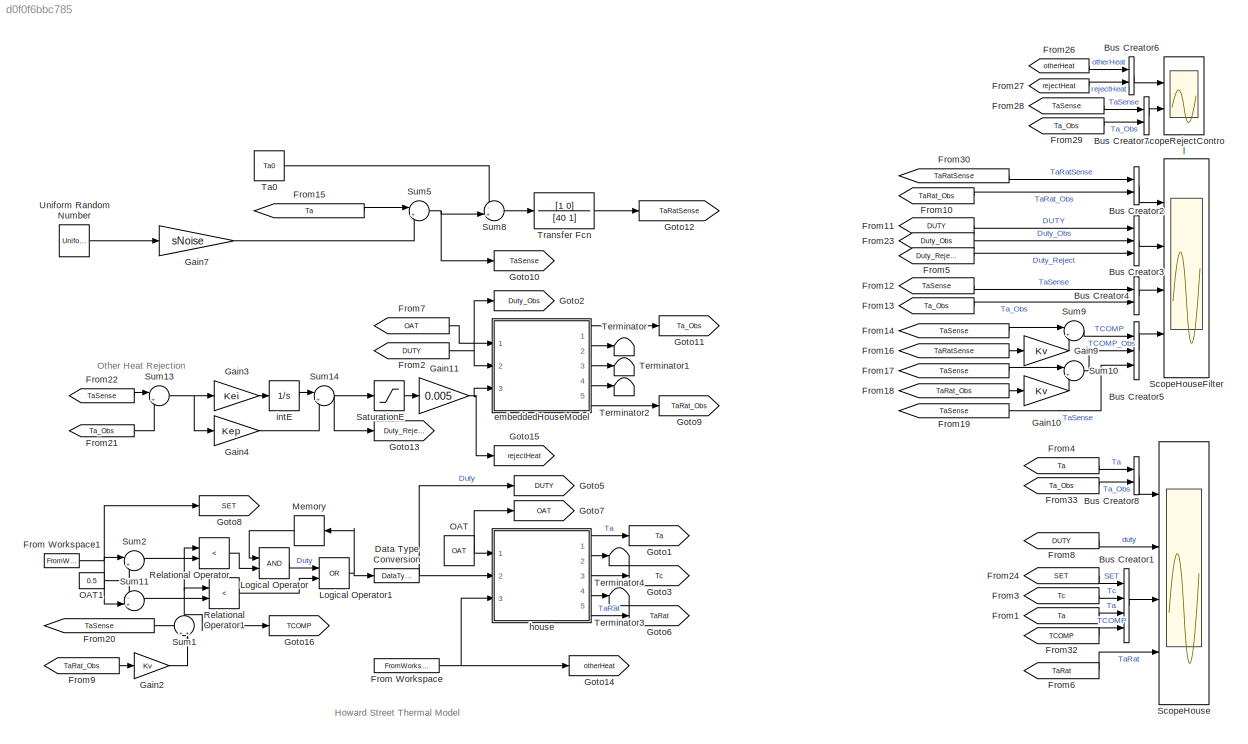
MODEL slx_d0f0f6bbc785
KIND model
CONFIG InitFcn = Ta0=Temp;\nTw0 = (Ta0*Ha + OAT*Ho)/(Ho+Ha);\nTb0=max(min(interp1([Rn Rx],[Tn Tx],OAT), Tn),Tx);\nTc0 = ((Ha+Hc)*Ta0 - Ha*Tw0) / Hc;\nD0 =max(min( Hc*(Tc0-Ta0)/(Hf*(Tb0-Tc0)), 1), 1e-32);\n\nTa1=SET(1,2);\nTw1 = (Ta1*Ha + OAT*Ho)/(Ho+Ha);\nTb1=max(min(interp1([Rn Rx],[Tn Tx],OAT), Tn),Tx);\nTc1 = ((Ha+Hc)*Ta1 - Ha*Tw1) / Hc;\nD1 =max(min( Hc*(Tc1-Ta1)/(Hf*(Tb1-Tc1)), 1), 1e-32);\n\n% Note:   not steady state a...<+235ch>
CONFIG PreLoadFcn = OAT=30;\nTemp=68;\n\nRn=29;\nRx=69;\nTn=180;\nTx=120;\n\nHc=114/86400;\nHa=1.61/86400;\n%Hf=1.08/86400;\nHf=1.745/86400;\nHo=283/86400;\n\ntau=40;\nFILTER_DELAY = 5;\n\nKv=400;  % gain in TCOMP of house control\nKei=2e-4;\nKep=1;\n\n% From match to thermo20160128.xlsx\nsNoise=0.001;\nSET = [0 60 18861 18862; 68 62 68 68]';\notherHeat=[0 1000 6000; .001 .001 .0005]';\ntFinal = 24132;\nTemp= 68.98;\n
BLOCK [BusCreator] Bus Creator1
  DisplayOption = bar
  Ports = [4, 1]
BLOCK [BusCreator] Bus Creator2
  DisplayOption = bar
  Inputs = 2
  Ports = [2, 1]
BLOCK [BusCreator] Bus Creator3
  DisplayOption = bar
  Inputs = 3
  Ports = [3, 1]
BLOCK [BusCreator] Bus Creator4
  DisplayOption = bar
  Inputs = 2
  Ports = [2, 1]
BLOCK [BusCreator] Bus Creator5
  DisplayOption = bar
  Inputs = 3
  Ports = [3, 1]
BLOCK [BusCreator] Bus Creator6
  DisplayOption = bar
  Inputs = 2
  Ports = [2, 1]
BLOCK [BusCreator] Bus Creator7
  DisplayOption = bar
  Inputs = 2
  Ports = [2, 1]
BLOCK [BusCreator] Bus Creator8
  DisplayOption = bar
  Inputs = 2
  Ports = [2, 1]
BLOCK [DataTypeConversion] Data Type Conversion
  OutDataTypeStr = double
  RndMeth = Floor
  SaturateOnIntegerOverflow = off
BLOCK [FromWorkspace] From Workspace
  OutputAfterFinalValue = Holding final value
  SampleTime = 1
  VariableName = otherHeat
  ZeroCross = on
BLOCK [FromWorkspace] From Workspace1
  OutputAfterFinalValue = Holding final value
  SampleTime = 1
  VariableName = SET
  ZeroCross = on
BLOCK [From] From1
  GotoTag = Ta
  TagVisibility = global
BLOCK [From] From10
  GotoTag = TaRat_Obs
  TagVisibility = global
BLOCK [From] From11
  GotoTag = DUTY
  TagVisibility = global
BLOCK [From] From12
  GotoTag = TaSense
  TagVisibility = global
BLOCK [From] From13
  GotoTag = Ta_Obs
  TagVisibility = global
BLOCK [From] From14
  CloseFcn = tagdialog Close
  GotoTag = TaSense
  TagVisibility = global
BLOCK [From] From15
  CloseFcn = tagdialog Close
  GotoTag = Ta
  TagVisibility = global
BLOCK [From] From16
  CloseFcn = tagdialog Close
  GotoTag = TaRatSense
  TagVisibility = global
BLOCK [From] From17
  CloseFcn = tagdialog Close
  GotoTag = TaSense
  TagVisibility = global
BLOCK [From] From18
  CloseFcn = tagdialog Close
  GotoTag = TaRat_Obs
  TagVisibility = global
BLOCK [From] From19
  CloseFcn = tagdialog Close
  GotoTag = TaSense
  TagVisibility = global
BLOCK [From] From2
  GotoTag = DUTY
  TagVisibility = global
BLOCK [From] From20
  CloseFcn = tagdialog Close
  GotoTag = TaSense
  TagVisibility = global
BLOCK [From] From21
  GotoTag = Ta_Obs
  TagVisibility = global
BLOCK [From] From22
  CloseFcn = tagdialog Close
  GotoTag = TaSense
  TagVisibility = global
BLOCK [From] From23
  GotoTag = Duty_Obs
  TagVisibility = global
BLOCK [From] From24
  GotoTag = SET
  TagVisibility = global
BLOCK [From] From26
  CloseFcn = tagdialog Close
  GotoTag = otherHeat
  TagVisibility = global
BLOCK [From] From27
  CloseFcn = tagdialog Close
  GotoTag = rejectHeat
  TagVisibility = global
BLOCK [From] From28
  GotoTag = TaSense
  TagVisibility = global
BLOCK [From] From29
  GotoTag = Ta_Obs
  TagVisibility = global
BLOCK [From] From3
  GotoTag = Tc
  TagVisibility = global
BLOCK [From] From30
  CloseFcn = tagdialog Close
  GotoTag = TaRatSense
  TagVisibility = global
BLOCK [From] From32
  GotoTag = TCOMP
  TagVisibility = global
BLOCK [From] From33
  GotoTag = Ta_Obs
  TagVisibility = global
BLOCK [From] From4
  GotoTag = Ta
  TagVisibility = global
BLOCK [From] From5
  GotoTag = Duty_Reject
  TagVisibility = global
BLOCK [From] From6
  GotoTag = TaRat
  TagVisibility = global
BLOCK [From] From7
  GotoTag = OAT
  TagVisibility = global
BLOCK [From] From8
  GotoTag = DUTY
  TagVisibility = global
BLOCK [From] From9
  GotoTag = TaRat_Obs
  TagVisibility = global
BLOCK [Gain] Gain10
  Gain = Kv
  OutDataTypeStr = Inherit: Inherit via internal rule
  ParamDataTypeStr = Inherit: Inherit via internal rule
  SaturateOnIntegerOverflow = off
BLOCK [Gain] Gain11
  Gain = 0.005
  OutDataTypeStr = Inherit: Inherit via internal rule
  ParamDataTypeStr = Inherit: Inherit via internal rule
  SaturateOnIntegerOverflow = off
BLOCK [Gain] Gain2
  Gain = Kv
  OutDataTypeStr = Inherit: Inherit via internal rule
  ParamDataTypeStr = Inherit: Inherit via internal rule
  SaturateOnIntegerOverflow = off
BLOCK [Gain] Gain3
  Gain = Kei
  OutDataTypeStr = Inherit: Inherit via internal rule
  ParamDataTypeStr = Inherit: Inherit via internal rule
  SaturateOnIntegerOverflow = off
BLOCK [Gain] Gain4
  Gain = Kep
  OutDataTypeStr = Inherit: Inherit via internal rule
  ParamDataTypeStr = Inherit: Inherit via internal rule
  SaturateOnIntegerOverflow = off
BLOCK [Gain] Gain7
  Gain = sNoise
  OutDataTypeStr = Inherit: Inherit via internal rule
  ParamDataTypeStr = Inherit: Inherit via internal rule
  SaturateOnIntegerOverflow = off
BLOCK [Gain] Gain9
  Gain = Kv
  OutDataTypeStr = Inherit: Inherit via internal rule
  ParamDataTypeStr = Inherit: Inherit via internal rule
  SaturateOnIntegerOverflow = off
BLOCK [Goto] Goto1
  GotoTag = Ta
  TagVisibility = global
BLOCK [Goto] Goto10
  GotoTag = TaSense
  TagVisibility = global
BLOCK [Goto] Goto11
  GotoTag = Ta_Obs
  TagVisibility = global
BLOCK [Goto] Goto12
  GotoTag = TaRatSense
  TagVisibility = global
BLOCK [Goto] Goto13
  GotoTag = Duty_Reject
  TagVisibility = global
BLOCK [Goto] Goto14
  GotoTag = otherHeat
  TagVisibility = global
BLOCK [Goto] Goto15
  GotoTag = rejectHeat
  TagVisibility = global
BLOCK [Goto] Goto16
  GotoTag = TCOMP
  TagVisibility = global
BLOCK [Goto] Goto2
  GotoTag = Duty_Obs
  TagVisibility = global
BLOCK [Goto] Goto3
  GotoTag = Tc
  TagVisibility = global
BLOCK [Goto] Goto5
  GotoTag = DUTY
  TagVisibility = global
BLOCK [Goto] Goto6
  GotoTag = TaRat
  TagVisibility = global
BLOCK [Goto] Goto7
  GotoTag = OAT
  TagVisibility = global
BLOCK [Goto] Goto8
  GotoTag = SET
  TagVisibility = global
BLOCK [Goto] Goto9
  GotoTag = TaRat_Obs
  TagVisibility = global
BLOCK [Logic] Logical Operator
  AllPortsSameDT = off
  OutDataTypeStr = boolean
  Ports = [2, 1]
BLOCK [Logic] Logical Operator1
  AllPortsSameDT = off
  Operator = OR
  OutDataTypeStr = boolean
  Ports = [2, 1]
BLOCK [Memory] Memory
  X0 = DUTY0
BLOCK [Constant] OAT
  Value = OAT
BLOCK [Constant] OAT1
  Value = 0.5
BLOCK [RelationalOperator] Relational Operator
  InputSameDT = off
  Operator = <
  OutDataTypeStr = boolean
  Ports = [2, 1]
BLOCK [RelationalOperator] Relational Operator1
  InputSameDT = off
  Operator = <
  OutDataTypeStr = boolean
  Ports = [2, 1]
BLOCK [Saturate] SaturationE
  InputPortMap = u0
  LowerLimit = -1
  Ports = [1, 1]
  UpperLimit = 1
BLOCK [Scope] ScopeHouse
  DataFormat = StructureWithTime
  Decimation = 2
  Floating = off
  LegendLocations = 0.84209     0.88674     0.12015    0.055728\n  0.864     0.67957    0.097622    0.031476\n0.84209     0.37539     0.12015     0.10423\n0.85148     0.21672     0.11014    0.031476
  LimitDataPoints = off
  NumInputPorts = 4
  Ports = [4]
  SampleTime = 0
  ShowLegends = on
  YMax = 75~70~5~5
  YMin = -75~-40~-5~-5
  ZoomMode = yonly
BLOCK [Scope] ScopeHouseFilter
  DataFormat = StructureWithTime
  Decimation = 2
  Floating = off
  LegendLocations = 0.78833     0.89866     0.16857    0.049861\n0.78976     0.64289     0.16714     0.07156\n0.81262      0.4319     0.14429    0.049861\n0.78405     0.17613     0.17286     0.07156
  LimitDataPoints = off
  NumInputPorts = 4
  Ports = [4]
  SampleTime = 0
  SaveName = ScopeData4
  ShowLegends = on
  YMax = 75~70~10~5
  YMin = -75~-40~-10~-5
  ZoomMode = yonly
BLOCK [Scope] ScopeRejectControl
  DataFormat = StructureWithTime
  Decimation = 2
  Floating = off
  LegendLocations = 0.82833     0.88674     0.13392    0.055728\n0.83584     0.42389     0.12641    0.055728
  LimitDataPoints = off
  NumInputPorts = 2
  Ports = [2]
  SampleTime = 0
  SaveName = ScopeData1
  ShowLegends = on
  YMax = 75~70
  YMin = -75~-40
  ZoomMode = yonly
BLOCK [Sum] Sum1
  IconShape = round
  InputSameDT = off
  Inputs = ++|
  OutDataTypeStr = Inherit: Inherit via internal rule
  Ports = [2, 1]
  SaturateOnIntegerOverflow = off
BLOCK [Sum] Sum10
  IconShape = round
  InputSameDT = off
  Inputs = |++
  OutDataTypeStr = Inherit: Inherit via internal rule
  Ports = [2, 1]
  SaturateOnIntegerOverflow = off
BLOCK [Sum] Sum11
  IconShape = round
  InputSameDT = off
  Inputs = -+|
  OutDataTypeStr = Inherit: Inherit via internal rule
  Ports = [2, 1]
  SaturateOnIntegerOverflow = off
BLOCK [Sum] Sum13
  IconShape = round
  InputSameDT = off
  Inputs = |+-
  OutDataTypeStr = Inherit: Inherit via internal rule
  Ports = [2, 1]
  SaturateOnIntegerOverflow = off
BLOCK [Sum] Sum14
  IconShape = round
  InputSameDT = off
  Inputs = |++
  OutDataTypeStr = Inherit: Inherit via internal rule
  Ports = [2, 1]
  SaturateOnIntegerOverflow = off
BLOCK [Sum] Sum2
  IconShape = round
  InputSameDT = off
  Inputs = |++
  OutDataTypeStr = Inherit: Inherit via internal rule
  Ports = [2, 1]
  SaturateOnIntegerOverflow = off
BLOCK [Sum] Sum5
  IconShape = round
  InputSameDT = off
  Inputs = |++
  OutDataTypeStr = Inherit: Inherit via internal rule
  Ports = [2, 1]
  SaturateOnIntegerOverflow = off
BLOCK [Sum] Sum8
  IconShape = round
  InputSameDT = off
  Inputs = -+|
  OutDataTypeStr = Inherit: Inherit via internal rule
  Ports = [2, 1]
  SaturateOnIntegerOverflow = off
BLOCK [Sum] Sum9
  IconShape = round
  InputSameDT = off
  Inputs = |++
  OutDataTypeStr = Inherit: Inherit via internal rule
  Ports = [2, 1]
  SaturateOnIntegerOverflow = off
BLOCK [Constant] Ta0
  Value = Ta0
BLOCK [Terminator] Terminator
BLOCK [Terminator] Terminator1
BLOCK [Terminator] Terminator2
BLOCK [Terminator] Terminator3
BLOCK [Terminator] Terminator4
BLOCK [TransferFcn] Transfer Fcn
  Denominator = [40 1]
  Numerator = [1 0]
BLOCK [UniformRandomNumber] Uniform Random Number
  SampleTime = FILTER_DELAY
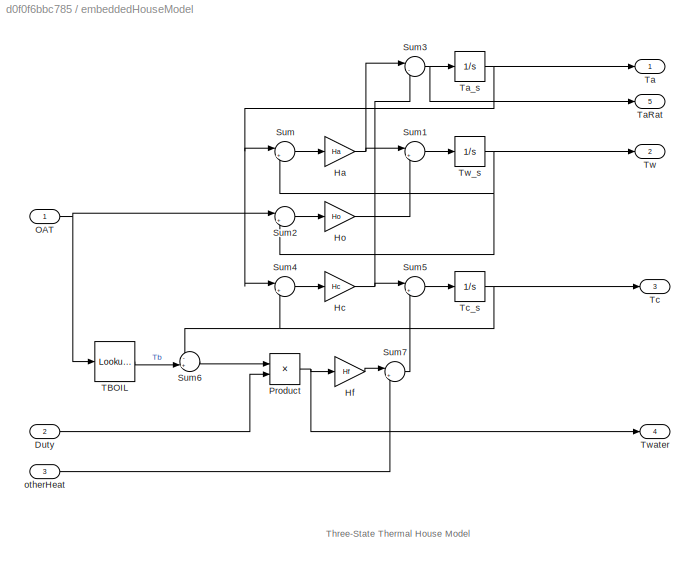
BLOCK [SubSystem] embeddedHouseModel
  FunctionWithSeparateData = off
  MaskHideContents = off
  MinAlgLoopOccurrences = off
  Opaque = off
  Ports = [3, 5]
  PropExecContextOutsideSubsystem = off
  RTWSystemCode = Auto
  RequestExecContextInheritance = off
BLOCK [Inport] embeddedHouseModel/Duty
  IconDisplay = Port number
  Port = 2
BLOCK [Gain] embeddedHouseModel/Ha
  Gain = Ha
  OutDataTypeStr = Inherit: Inherit via internal rule
  ParamDataTypeStr = Inherit: Inherit via internal rule
  SaturateOnIntegerOverflow = off
BLOCK [Gain] embeddedHouseModel/Hc
  Gain = Hc
  OutDataTypeStr = Inherit: Inherit via internal rule
  ParamDataTypeStr = Inherit: Inherit via internal rule
  SaturateOnIntegerOverflow = off
BLOCK [Gain] embeddedHouseModel/Hf
  Gain = Hf
  OutDataTypeStr = Inherit: Inherit via internal rule
  ParamDataTypeStr = Inherit: Inherit via internal rule
  SaturateOnIntegerOverflow = off
BLOCK [Gain] embeddedHouseModel/Ho
  Gain = Ho
  OutDataTypeStr = Inherit: Inherit via internal rule
  ParamDataTypeStr = Inherit: Inherit via internal rule
  SaturateOnIntegerOverflow = off
BLOCK [Inport] embeddedHouseModel/OAT
  IconDisplay = Port number
BLOCK [Product] embeddedHouseModel/Product
  InputSameDT = off
  OutDataTypeStr = Inherit: Inherit via internal rule
  Ports = [2, 1]
  RndMeth = Floor
  SaturateOnIntegerOverflow = off
BLOCK [Sum] embeddedHouseModel/Sum
  IconShape = round
  InputSameDT = off
  Inputs = |+-
  OutDataTypeStr = Inherit: Inherit via internal rule
  Ports = [2, 1]
  SaturateOnIntegerOverflow = off
BLOCK [Sum] embeddedHouseModel/Sum1
  IconShape = round
  InputSameDT = off
  Inputs = |++
  OutDataTypeStr = Inherit: Inherit via internal rule
  Ports = [2, 1]
  SaturateOnIntegerOverflow = off
BLOCK [Sum] embeddedHouseModel/Sum2
  IconShape = round
  InputSameDT = off
  Inputs = |+-
  OutDataTypeStr = Inherit: Inherit via internal rule
  Ports = [2, 1]
  SaturateOnIntegerOverflow = off
BLOCK [Sum] embeddedHouseModel/Sum3
  IconShape = round
  InputSameDT = off
  Inputs = |--
  OutDataTypeStr = Inherit: Inherit via internal rule
  Ports = [2, 1]
  SaturateOnIntegerOverflow = off
BLOCK [Sum] embeddedHouseModel/Sum4
  IconShape = round
  InputSameDT = off
  Inputs = |+-
  OutDataTypeStr = Inherit: Inherit via internal rule
  Ports = [2, 1]
  SaturateOnIntegerOverflow = off
BLOCK [Sum] embeddedHouseModel/Sum5
  IconShape = round
  InputSameDT = off
  Inputs = |++
  OutDataTypeStr = Inherit: Inherit via internal rule
  Ports = [2, 1]
  SaturateOnIntegerOverflow = off
BLOCK [Sum] embeddedHouseModel/Sum6
  IconShape = round
  InputSameDT = off
  Inputs = -+|
  OutDataTypeStr = Inherit: Inherit via internal rule
  Ports = [2, 1]
  SaturateOnIntegerOverflow = off
BLOCK [Sum] embeddedHouseModel/Sum7
  IconShape = round
  InputSameDT = off
  Inputs = |++
  OutDataTypeStr = Inherit: Inherit via internal rule
  Ports = [2, 1]
  SaturateOnIntegerOverflow = off
BLOCK [Lookup_n-D] embeddedHouseModel/TBOIL
  BreakpointsForDimension1 = [Rn Rx]
  ExtrapMethod = Clip
  NumberOfTableDimensions = 1
  Ports = [1, 1]
  RndMeth = Simplest
  Table = [Tn Tx]
BLOCK [Outport] embeddedHouseModel/Ta
  IconDisplay = Port number
BLOCK [Outport] embeddedHouseModel/TaRat
  IconDisplay = Port number
  Port = 5
BLOCK [Integrator] embeddedHouseModel/Ta_s
  InitialCondition = Ta0
  Ports = [1, 1]
BLOCK [Outport] embeddedHouseModel/Tc
  IconDisplay = Port number
  Port = 3
BLOCK [Integrator] embeddedHouseModel/Tc_s
  InitialCondition = Tc0
  Ports = [1, 1]
BLOCK [Outport] embeddedHouseModel/Tw
  IconDisplay = Port number
  Port = 2
BLOCK [Integrator] embeddedHouseModel/Tw_s
  InitialCondition = Tw0
  Ports = [1, 1]
BLOCK [Outport] embeddedHouseModel/Twater
  IconDisplay = Port number
  Port = 4
BLOCK [Inport] embeddedHouseModel/otherHeat
  IconDisplay = Port number
  Port = 3
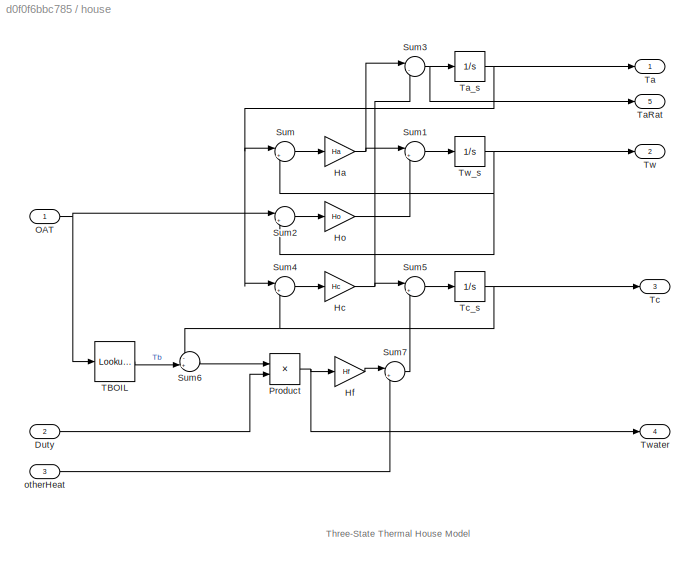
BLOCK [SubSystem] house
  FunctionWithSeparateData = off
  MaskHideContents = off
  MinAlgLoopOccurrences = off
  Opaque = off
  Ports = [3, 5]
  PropExecContextOutsideSubsystem = off
  RTWSystemCode = Auto
  RequestExecContextInheritance = off
BLOCK [Inport] house/Duty
  IconDisplay = Port number
  Port = 2
BLOCK [Gain] house/Ha
  Gain = Ha
  OutDataTypeStr = Inherit: Inherit via internal rule
  ParamDataTypeStr = Inherit: Inherit via internal rule
  SaturateOnIntegerOverflow = off
BLOCK [Gain] house/Hc
  Gain = Hc
  OutDataTypeStr = Inherit: Inherit via internal rule
  ParamDataTypeStr = Inherit: Inherit via internal rule
  SaturateOnIntegerOverflow = off
BLOCK [Gain] house/Hf
  Gain = Hf
  OutDataTypeStr = Inherit: Inherit via internal rule
  ParamDataTypeStr = Inherit: Inherit via internal rule
  SaturateOnIntegerOverflow = off
BLOCK [Gain] house/Ho
  Gain = Ho
  OutDataTypeStr = Inherit: Inherit via internal rule
  ParamDataTypeStr = Inherit: Inherit via internal rule
  SaturateOnIntegerOverflow = off
BLOCK [Inport] house/OAT
  IconDisplay = Port number
BLOCK [Product] house/Product
  InputSameDT = off
  OutDataTypeStr = Inherit: Inherit via internal rule
  Ports = [2, 1]
  RndMeth = Floor
  SaturateOnIntegerOverflow = off
BLOCK [Sum] house/Sum
  IconShape = round
  InputSameDT = off
  Inputs = |+-
  OutDataTypeStr = Inherit: Inherit via internal rule
  Ports = [2, 1]
  SaturateOnIntegerOverflow = off
BLOCK [Sum] house/Sum1
  IconShape = round
  InputSameDT = off
  Inputs = |++
  OutDataTypeStr = Inherit: Inherit via internal rule
  Ports = [2, 1]
  SaturateOnIntegerOverflow = off
BLOCK [Sum] house/Sum2
  IconShape = round
  InputSameDT = off
  Inputs = |+-
  OutDataTypeStr = Inherit: Inherit via internal rule
  Ports = [2, 1]
  SaturateOnIntegerOverflow = off
BLOCK [Sum] house/Sum3
  IconShape = round
  InputSameDT = off
  Inputs = |--
  OutDataTypeStr = Inherit: Inherit via internal rule
  Ports = [2, 1]
  SaturateOnIntegerOverflow = off
BLOCK [Sum] house/Sum4
  IconShape = round
  InputSameDT = off
  Inputs = |+-
  OutDataTypeStr = Inherit: Inherit via internal rule
  Ports = [2, 1]
  SaturateOnIntegerOverflow = off
BLOCK [Sum] house/Sum5
  IconShape = round
  InputSameDT = off
  Inputs = |++
  OutDataTypeStr = Inherit: Inherit via internal rule
  Ports = [2, 1]
  SaturateOnIntegerOverflow = off
BLOCK [Sum] house/Sum6
  IconShape = round
  InputSameDT = off
  Inputs = -+|
  OutDataTypeStr = Inherit: Inherit via internal rule
  Ports = [2, 1]
  SaturateOnIntegerOverflow = off
BLOCK [Sum] house/Sum7
  IconShape = round
  InputSameDT = off
  Inputs = |++
  OutDataTypeStr = Inherit: Inherit via internal rule
  Ports = [2, 1]
  SaturateOnIntegerOverflow = off
BLOCK [Lookup_n-D] house/TBOIL
  BreakpointsForDimension1 = [Rn Rx]
  ExtrapMethod = Clip
  NumberOfTableDimensions = 1
  Ports = [1, 1]
  RndMeth = Simplest
  Table = [Tn Tx]
BLOCK [Outport] house/Ta
  IconDisplay = Port number
BLOCK [Outport] house/TaRat
  IconDisplay = Port number
  Port = 5
BLOCK [Integrator] house/Ta_s
  InitialCondition = Ta0
  Ports = [1, 1]
BLOCK [Outport] house/Tc
  IconDisplay = Port number
  Port = 3
BLOCK [Integrator] house/Tc_s
  InitialCondition = Tc0
  Ports = [1, 1]
BLOCK [Outport] house/Tw
  IconDisplay = Port number
  Port = 2
BLOCK [Integrator] house/Tw_s
  InitialCondition = Tw0
  Ports = [1, 1]
BLOCK [Outport] house/Twater
  IconDisplay = Port number
  Port = 4
BLOCK [Inport] house/otherHeat
  IconDisplay = Port number
  Port = 3
BLOCK [Integrator] intE
  InitialCondition = intEi
  LimitOutput = on
  LowerSaturationLimit = -1
  Ports = [1, 1]
  UpperSaturationLimit = 1
ANNOTATION (root): Howard Street Thermal Model
ANNOTATION (root): Other Heat Rejection
ANNOTATION embeddedHouseModel: Three-State Thermal House Model
ANNOTATION house: Three-State Thermal House Model
LINE Bus Creator1:1 -> ScopeHouse:3
LINE Bus Creator2:1 -> ScopeHouseFilter:1
LINE Bus Creator3:1 -> ScopeHouseFilter:2
LINE Bus Creator4:1 -> ScopeHouseFilter:3
LINE Bus Creator5:1 -> ScopeHouseFilter:4
LINE Bus Creator6:1 -> ScopeRejectControl:1
LINE Bus Creator7:1 -> ScopeRejectControl:2
LINE Bus Creator8:1 -> ScopeHouse:1
NET Data Type Conversion:1 -> Goto5:1, house:2
NET From Workspace1:1 -> Goto8:1, Sum11:2, Sum2:1
NET From Workspace:1 -> Goto14:1, house:3
LINE From10:1 -> Bus Creator2:2
LINE From11:1 -> Bus Creator3:1
LINE From12:1 -> Bus Creator4:1
LINE From13:1 -> Bus Creator4:2
LINE From14:1 -> Sum9:1
LINE From15:1 -> Sum5:1
LINE From16:1 -> Gain9:1
LINE From17:1 -> Sum10:1
LINE From18:1 -> Gain10:1
LINE From19:1 -> Bus Creator5:3
LINE From1:1 -> Bus Creator1:3
LINE From20:1 -> Sum1:1
LINE From21:1 -> Sum13:2
LINE From22:1 -> Sum13:1
LINE From23:1 -> Bus Creator3:2
LINE From24:1 -> Bus Creator1:1
LINE From26:1 -> Bus Creator6:1
LINE From27:1 -> Bus Creator6:2
LINE From28:1 -> Bus Creator7:1
LINE From29:1 -> Bus Creator7:2
NET From2:1 -> Goto2:1, embeddedHouseModel:2
LINE From30:1 -> Bus Creator2:1
LINE From32:1 -> Bus Creator1:4
LINE From33:1 -> Bus Creator8:2
LINE From3:1 -> Bus Creator1:2
LINE From4:1 -> Bus Creator8:1
LINE From5:1 -> Bus Creator3:3
LINE From6:1 -> ScopeHouse:4
LINE From7:1 -> embeddedHouseModel:1
LINE From8:1 -> ScopeHouse:2
LINE From9:1 -> Gain2:1
LINE Gain10:1 -> Sum10:2
NET Gain11:1 -> Goto15:1, embeddedHouseModel:3
LINE Gain2:1 -> Sum1:2
LINE Gain3:1 -> intE:1
LINE Gain4:1 -> Sum14:2
LINE Gain7:1 -> Sum5:2
LINE Gain9:1 -> Sum9:2
NET Logical Operator1:1 -> Data Type Conversion:1, Memory:1
LINE Logical Operator:1 -> Logical Operator1:1
LINE Memory:1 -> Logical Operator:1
NET OAT1:1 -> Sum11:1, Sum2:2
NET OAT:1 -> Goto7:1, house:1
LINE Relational Operator1:1 -> Logical Operator1:2
LINE Relational Operator:1 -> Logical Operator:2
LINE SaturationE:1 -> Gain11:1
LINE Sum10:1 -> Bus Creator5:2
LINE Sum11:1 -> Relational Operator1:2
NET Sum13:1 -> Gain3:1, Gain4:1
NET Sum14:1 -> Goto13:1, SaturationE:1
NET Sum1:1 -> Goto16:1, Relational Operator1:1, Relational Operator:1
LINE Sum2:1 -> Relational Operator:2
NET Sum5:1 -> Goto10:1, Sum8:2
LINE Sum8:1 -> Transfer Fcn:1
LINE Sum9:1 -> Bus Creator5:1
LINE Ta0:1 -> Sum8:1
LINE Transfer Fcn:1 -> Goto12:1
LINE Uniform Random Number:1 -> Gain7:1
LINE embeddedHouseModel/Duty:1 -> embeddedHouseModel/Product:2
NET embeddedHouseModel/Ha:1 -> embeddedHouseModel/Sum1:1, embeddedHouseModel/Sum3:1
NET embeddedHouseModel/Hc:1 -> embeddedHouseModel/Sum3:2, embeddedHouseModel/Sum5:1
LINE embeddedHouseModel/Hf:1 -> embeddedHouseModel/Sum7:1
LINE embeddedHouseModel/Ho:1 -> embeddedHouseModel/Sum1:2
NET embeddedHouseModel/OAT:1 -> embeddedHouseModel/Sum2:1, embeddedHouseModel/TBOIL:1
NET embeddedHouseModel/Product:1 -> embeddedHouseModel/Hf:1, embeddedHouseModel/Twater:1
LINE embeddedHouseModel/Sum1:1 -> embeddedHouseModel/Tw_s:1
LINE embeddedHouseModel/Sum2:1 -> embeddedHouseModel/Ho:1
NET embeddedHouseModel/Sum3:1 -> embeddedHouseModel/TaRat:1, embeddedHouseModel/Ta_s:1
LINE embeddedHouseModel/Sum4:1 -> embeddedHouseModel/Hc:1
LINE embeddedHouseModel/Sum5:1 -> embeddedHouseModel/Tc_s:1
LINE embeddedHouseModel/Sum6:1 -> embeddedHouseModel/Product:1
LINE embeddedHouseModel/Sum7:1 -> embeddedHouseModel/Sum5:2
LINE embeddedHouseModel/Sum:1 -> embeddedHouseModel/Ha:1
LINE embeddedHouseModel/TBOIL:1 -> embeddedHouseModel/Sum6:2
NET embeddedHouseModel/Ta_s:1 -> embeddedHouseModel/Sum4:1, embeddedHouseModel/Sum:1, embeddedHouseModel/Ta:1
NET embeddedHouseModel/Tc_s:1 -> embeddedHouseModel/Sum4:2, embeddedHouseModel/Sum6:1, embeddedHouseModel/Tc:1
NET embeddedHouseModel/Tw_s:1 -> embeddedHouseModel/Sum2:2, embeddedHouseModel/Sum:2, embeddedHouseModel/Tw:1
LINE embeddedHouseModel/otherHeat:1 -> embeddedHouseModel/Sum7:2
LINE embeddedHouseModel:1 -> Goto11:1
LINE embeddedHouseModel:2 -> Terminator:1
LINE embeddedHouseModel:3 -> Terminator1:1
LINE embeddedHouseModel:4 -> Terminator2:1
LINE embeddedHouseModel:5 -> Goto9:1
LINE house/Duty:1 -> house/Product:2
NET house/Ha:1 -> house/Sum1:1, house/Sum3:1
NET house/Hc:1 -> house/Sum3:2, house/Sum5:1
LINE house/Hf:1 -> house/Sum7:1
LINE house/Ho:1 -> house/Sum1:2
NET house/OAT:1 -> house/Sum2:1, house/TBOIL:1
NET house/Product:1 -> house/Hf:1, house/Twater:1
LINE house/Sum1:1 -> house/Tw_s:1
LINE house/Sum2:1 -> house/Ho:1
NET house/Sum3:1 -> house/TaRat:1, house/Ta_s:1
LINE house/Sum4:1 -> house/Hc:1
LINE house/Sum5:1 -> house/Tc_s:1
LINE house/Sum6:1 -> house/Product:1
LINE house/Sum7:1 -> house/Sum5:2
LINE house/Sum:1 -> house/Ha:1
LINE house/TBOIL:1 -> house/Sum6:2
NET house/Ta_s:1 -> house/Sum4:1, house/Sum:1, house/Ta:1
NET house/Tc_s:1 -> house/Sum4:2, house/Sum6:1, house/Tc:1
NET house/Tw_s:1 -> house/Sum2:2, house/Sum:2, house/Tw:1
LINE house/otherHeat:1 -> house/Sum7:2
LINE house:1 -> Goto1:1
LINE house:2 -> Terminator4:1
LINE house:3 -> Goto3:1
LINE house:4 -> Terminator3:1
LINE house:5 -> Goto6:1
LINE intE:1 -> Sum14:1
note: NET lines group one-source signal fan-out (src -> all destinations, sorted); 1:1 wires keep LINE
